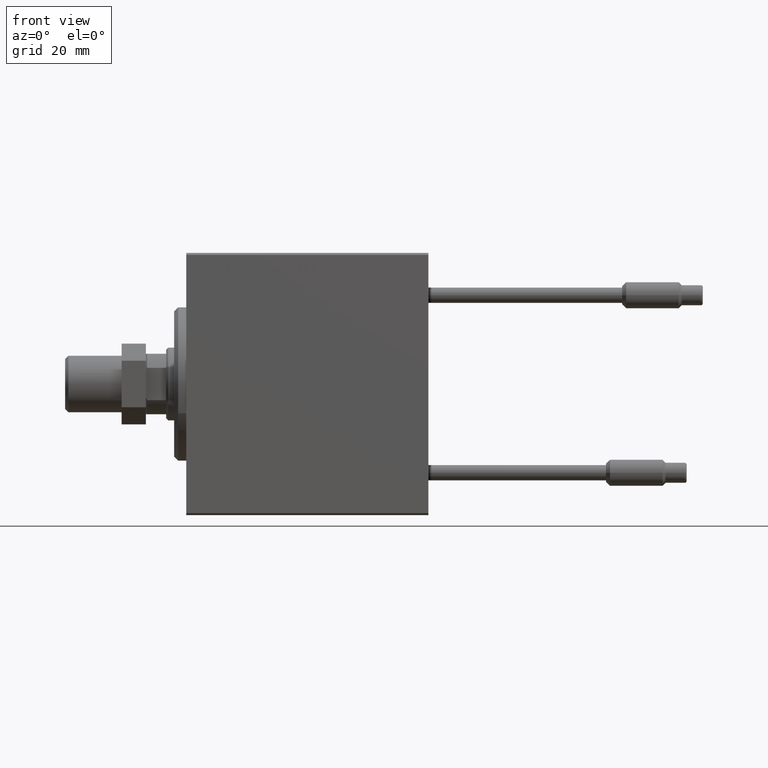
[diagram: clean part render]
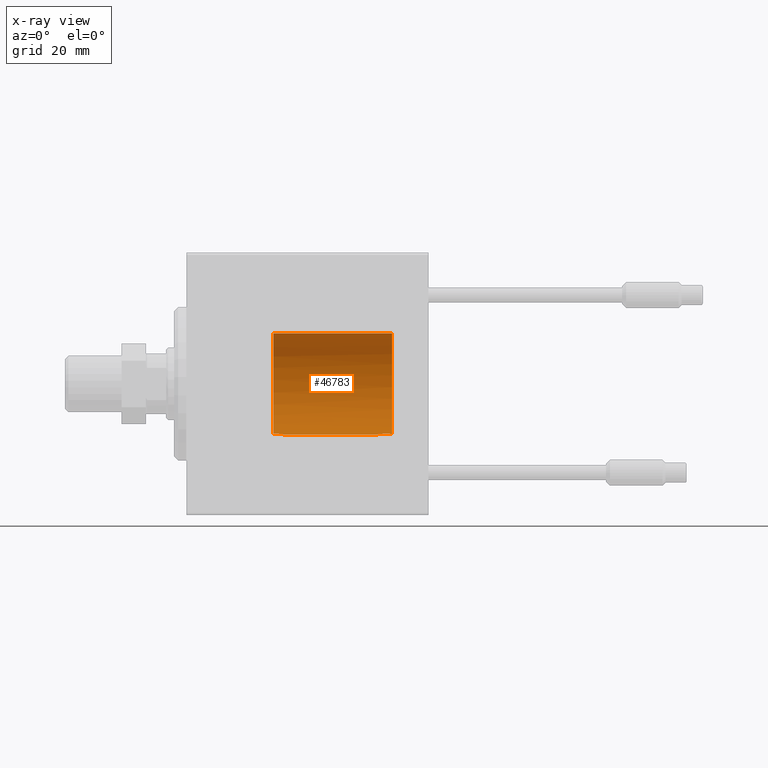
[diagram: x-ray — body ghosted, one internal face saturated and labeled with its STEP entity id]
A machine part, front view, then the same camera in x-ray: the body is ghosted and one INTERNAL B-rep face — a face not visible from any outside direction — is saturated and labeled: STEP entity #46783.
In plain terms, the highlighted cylindrical surface (partial cylindrical patch) has radius 12.5 mm, axis along (-1, -0, -0).
Its self-contained STEP definition (entity closure, byte-faithful):
#17 = CARTESIAN_POINT ( 'NONE',  ( 23.66489188515411257, 1.117900319151801991, -12.45045352946033290 ) ) ;
#778 = CARTESIAN_POINT ( 'NONE',  ( 24.00000000000000000, 1.530808426277417854E-15, -12.50000000000000000 ) ) ;
#927 = EDGE_CURVE ( 'NONE', #24365, #43203, #17665, .T. ) ;
#1570 = CARTESIAN_POINT ( 'NONE',  ( 51.00000000000013500, 1.322875655532433026, -12.42980289465605814 ) ) ;
#3085 = EDGE_CURVE ( 'NONE', #25112, #29074, #42732, .T. ) ;
#3160 = CARTESIAN_POINT ( 'NONE',  ( 50.86689974519472912, 1.473797158526928941, -12.41374066230209294 ) ) ;
#3456 = DIRECTION ( 'NONE',  ( 0.000000000000000000, 0.000000000000000000, 1.000000000000000000 ) ) ;
#3823 = DIRECTION ( 'NONE',  ( 0.000000000000000000, 0.000000000000000000, 1.000000000000000000 ) ) ;
#3869 = FACE_OUTER_BOUND ( 'NONE', #13160, .T. ) ;
#4397 = CARTESIAN_POINT ( 'NONE',  ( 23.87038660041933724, 0.7237173720818528277, -12.47975806619838046 ) ) ;
#5196 = CARTESIAN_POINT ( 'NONE',  ( 51.00000000000000000, 0.000000000000000000, 12.50000000000000000 ) ) ;
#6574 = CARTESIAN_POINT ( 'NONE',  ( 47.49999999999999289, 1.530808498934191127E-15, -12.50000000000000000 ) ) ;
#6698 = VECTOR ( 'NONE', #13635, 1000.000000000000000 ) ;
#7052 = CARTESIAN_POINT ( 'NONE',  ( 49.78743626900490682, 1.989409466438088803, -12.34077213369587689 ) ) ;
#7246 = EDGE_CURVE ( 'NONE', #24365, #29074, #37694, .T. ) ;
#7300 = CARTESIAN_POINT ( 'NONE',  ( 47.96913547360404806, 1.302704858567468760, -12.43304705398240095 ) ) ;
#7853 = DIRECTION ( 'NONE',  ( -1.000000000000000000, 0.000000000000000000, 0.000000000000000000 ) ) ;
#8282 = CARTESIAN_POINT ( 'NONE',  ( 23.48374771350913903, 1.349095562022244454, -12.42752732354038514 ) ) ;
#8546 = CARTESIAN_POINT ( 'NONE',  ( 22.18746328835901238, 1.996659936382160661, -12.33950396025897156 ) ) ;
#10484 = ORIENTED_EDGE ( 'NONE', *, *, #927, .T. ) ;
#10521 = CARTESIAN_POINT ( 'NONE',  ( 21.60000000000000142, 1.959591794226542394, -12.34544450394557558 ) ) ;
#12353 = ORIENTED_EDGE ( 'NONE', *, *, #36460, .T. ) ;
#13160 = EDGE_LOOP ( 'NONE', ( #34921, #10484, #25690, #15857, #12353, #25018 ) ) ;
#13635 = DIRECTION ( 'NONE',  ( -1.000000000000000000, -0.000000000000000000, -0.000000000000000000 ) ) ;
#14791 = CARTESIAN_POINT ( 'NONE',  ( 48.60395322527892148, 1.799271847711377825, -12.37003594470386680 ) ) ;
#14928 = CIRCLE ( 'NONE', #47915, 12.50000000000000000 ) ;
#15857 = ORIENTED_EDGE ( 'NONE', *, *, #36069, .T. ) ;
#17495 = CARTESIAN_POINT ( 'NONE',  ( 51.00000000000000000, 0.000000000000000000, 12.50000000000000000 ) ) ;
#17665 = B_SPLINE_CURVE_WITH_KNOTS ( 'NONE', 3,
 ( #42691, #45796, #18420, #27185, #30805, #7300, #49668, #50184, #14791, #46296, #30545, #23053, #7052, #34186, #18932, #38560, #3160, #22540 ),
 .UNSPECIFIED., .F., .F.,
 ( 4, 2, 2, 2, 2, 2, 2, 2, 4 ),
 ( 7.954070731922964181E-18, 0.0006027441664444459007, 0.001205488332888883778, 0.001808232499333321981, 0.002410976665777759750, 0.003013720832222197520, 0.003616464998666635722, 0.004219209165111073925, 0.004821953331555511695 ),
 .UNSPECIFIED. ) ;
#18420 = CARTESIAN_POINT ( 'NONE',  ( 47.53045032196519770, 0.4023876781965645133, -12.49502177385110180 ) ) ;
#18840 = CARTESIAN_POINT ( 'NONE',  ( 51.00000000000000000, 1.530808498934191521E-15, -12.50000000000000000 ) ) ;
#18932 = CARTESIAN_POINT ( 'NONE',  ( 50.36702809096098576, 1.813452641056178205, -12.36820437241038562 ) ) ;
#22540 = CARTESIAN_POINT ( 'NONE',  ( 51.00000000000013500, 1.322875655532433026, -12.42980289465605814 ) ) ;
#23053 = CARTESIAN_POINT ( 'NONE',  ( 49.58201919524508128, 2.008388005028794332, -12.33760604730347410 ) ) ;
#23783 = CARTESIAN_POINT ( 'NONE',  ( 22.33672788703165679, 1.976937725288908210, -12.34273042088552330 ) ) ;
#24311 = CARTESIAN_POINT ( 'NONE',  ( 23.74279251675834601, 0.9923644054541594928, -12.46127365530041509 ) ) ;
#24365 = VERTEX_POINT ( 'NONE', #6574 ) ;
#24752 = LINE ( 'NONE', #17495, #6698 ) ;
#24813 = CARTESIAN_POINT ( 'NONE',  ( 21.89227028947654929, 2.002545304233220858, -12.33855020621523302 ) ) ;
#25018 = ORIENTED_EDGE ( 'NONE', *, *, #3085, .T. ) ;
#25112 = VERTEX_POINT ( 'NONE', #10521 ) ;
#25690 = ORIENTED_EDGE ( 'NONE', *, *, #48642, .F. ) ;
#26894 = DIRECTION ( 'NONE',  ( -1.000000000000000000, -0.000000000000000000, -0.000000000000000000 ) ) ;
#27185 = CARTESIAN_POINT ( 'NONE',  ( 47.65114762002322379, 0.7891683311345192298, -12.47656596655153116 ) ) ;
#28171 = CARTESIAN_POINT ( 'NONE',  ( 23.99999999999999645, 0.1473696046775624380, -12.50000000000000178 ) ) ;
#28437 = CARTESIAN_POINT ( 'NONE',  ( 23.91831461645850254, 0.5846271582314070958, -12.48714944550828498 ) ) ;
#28680 = CARTESIAN_POINT ( 'NONE',  ( 23.37873654545996516, 1.456279192147104107, -12.41523454539819404 ) ) ;
#29074 = VERTEX_POINT ( 'NONE', #31101 ) ;
#30106 = AXIS2_PLACEMENT_3D ( 'NONE', #50339, #30702, #3823 ) ;
#30499 = DIRECTION ( 'NONE',  ( 0.000000000000000000, 0.000000000000000000, 1.000000000000000000 ) ) ;
#30545 = CARTESIAN_POINT ( 'NONE',  ( 49.18098115210914756, 1.984584717723732128, -12.34145732299796627 ) ) ;
#30702 = DIRECTION ( 'NONE',  ( -1.000000000000000000, 0.000000000000000000, 0.000000000000000000 ) ) ;
#30805 = CARTESIAN_POINT ( 'NONE',  ( 47.74008254401930174, 0.9712243277673447972, -12.46332308416293877 ) ) ;
#31101 = CARTESIAN_POINT ( 'NONE',  ( 24.00000000000000000, 1.530808426277417854E-15, -12.50000000000000000 ) ) ;
#31794 = CARTESIAN_POINT ( 'NONE',  ( 23.03667328571824058, 1.735500702318550026, -12.38035657496057063 ) ) ;
#32912 = CARTESIAN_POINT ( 'NONE',  ( 21.60000000000000142, 0.000000000000000000, 12.50000000000000000 ) ) ;
#34186 = CARTESIAN_POINT ( 'NONE',  ( 50.17741464809243723, 1.892479597893395482, -12.35600776353412122 ) ) ;
#34921 = ORIENTED_EDGE ( 'NONE', *, *, #7246, .F. ) ;
#36069 = EDGE_CURVE ( 'NONE', #44011, #43753, #24752, .T. ) ;
#36460 = EDGE_CURVE ( 'NONE', #43753, #25112, #14928, .T. ) ;
#37694 = LINE ( 'NONE', #18840, #50597 ) ;
#37946 = DIRECTION ( 'NONE',  ( -1.000000000000000000, -0.000000000000000000, -0.000000000000000000 ) ) ;
#38380 = CIRCLE ( 'NONE', #30106, 12.50000000000000000 ) ;
#38517 = CARTESIAN_POINT ( 'NONE',  ( 51.00000000000000000, 0.000000000000000000, 0.000000000000000000 ) ) ;
#38560 = CARTESIAN_POINT ( 'NONE',  ( 50.71033926821618820, 1.604813711208562754, -12.39700217114532954 ) ) ;
#39549 = CARTESIAN_POINT ( 'NONE',  ( 23.98328942354288884, 0.2971244593145340174, -12.49729599730583729 ) ) ;
#40061 = CARTESIAN_POINT ( 'NONE',  ( 21.60000000000000142, 1.959591794226542394, -12.34544450394557558 ) ) ;
#42691 = CARTESIAN_POINT ( 'NONE',  ( 47.49999999999999289, 1.530808498934191127E-15, -12.50000000000000000 ) ) ;
#42732 = B_SPLINE_CURVE_WITH_KNOTS ( 'NONE', 3,
 ( #40061, #47541, #24813, #8546, #23783, #43432, #31794, #28680, #8282, #17, #24311, #4397, #28437, #39549, #28171, #778 ),
 .UNSPECIFIED., .F., .F.,
 ( 4, 2, 2, 2, 2, 2, 2, 4 ),
 ( 0.002730459340597002175, 0.003172024469343901268, 0.003613589598090799927, 0.004496719855584597678, 0.004938284984331492433, 0.005379850113078387189, 0.005821415241825281944, 0.006262980370572176700 ),
 .UNSPECIFIED. ) ;
#43203 = VERTEX_POINT ( 'NONE', #1570 ) ;
#43432 = CARTESIAN_POINT ( 'NONE',  ( 22.76544708118979443, 1.871033009917032475, -12.35938281327568333 ) ) ;
#43753 = VERTEX_POINT ( 'NONE', #32912 ) ;
#44011 = VERTEX_POINT ( 'NONE', #5196 ) ;
#45796 = CARTESIAN_POINT ( 'NONE',  ( 47.49999999999999289, 0.2038324961472966212, -12.50000000000000000 ) ) ;
#46296 = CARTESIAN_POINT ( 'NONE',  ( 48.97932644720604856, 1.941437110976220515, -12.34852179005069317 ) ) ;
#46518 = CYLINDRICAL_SURFACE ( 'NONE', #46563, 12.50000000000000000 ) ;
#46563 = AXIS2_PLACEMENT_3D ( 'NONE', #38517, #26894, #30499 ) ;
#46783 = ADVANCED_FACE ( 'NONE', ( #3869 ), #46518, .F. ) ;
#47541 = CARTESIAN_POINT ( 'NONE',  ( 21.74564180324009044, 1.989320802822965417, -12.34072561988454098 ) ) ;
#47606 = CARTESIAN_POINT ( 'NONE',  ( 21.60000000000000142, 0.000000000000000000, 0.000000000000000000 ) ) ;
#47915 = AXIS2_PLACEMENT_3D ( 'NONE', #47606, #7853, #3456 ) ;
#48642 = EDGE_CURVE ( 'NONE', #44011, #43203, #38380, .T. ) ;
#49668 = CARTESIAN_POINT ( 'NONE',  ( 48.10898979271954801, 1.451004077592688901, -12.41612488339556819 ) ) ;
#50184 = CARTESIAN_POINT ( 'NONE',  ( 48.42521375887140067, 1.698574922053669667, -12.38468462204168041 ) ) ;
#50339 = CARTESIAN_POINT ( 'NONE',  ( 51.00000000000000000, 0.000000000000000000, 0.000000000000000000 ) ) ;
#50597 = VECTOR ( 'NONE', #37946, 1000.000000000000000 ) ;